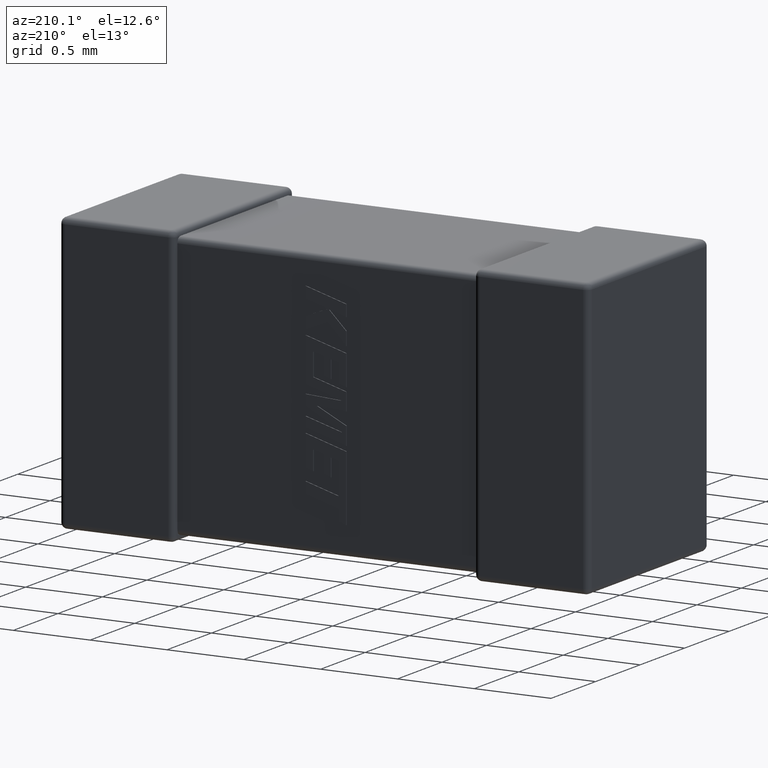
[diagram: clean part render]
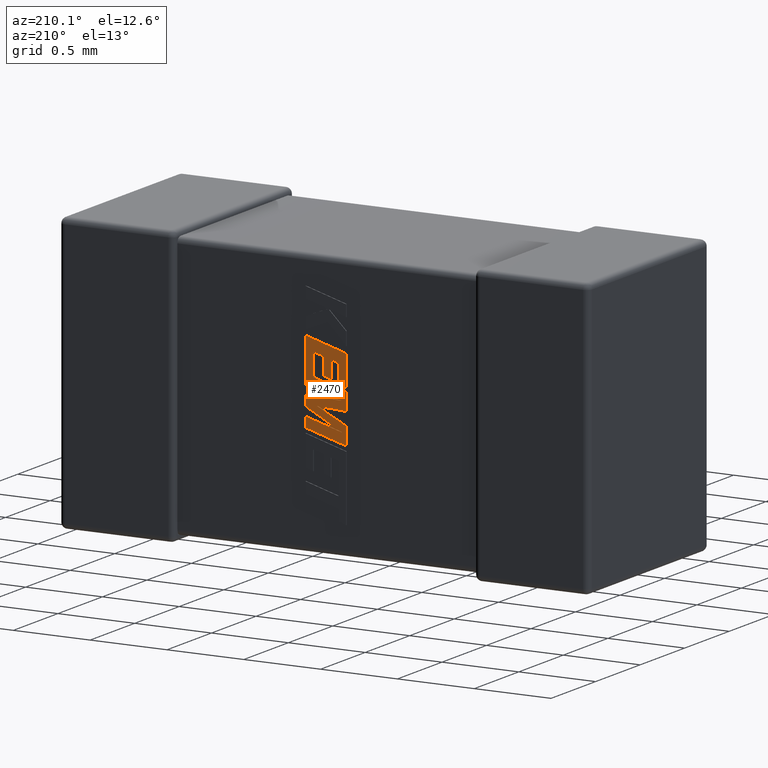
[diagram: same view with one face highlighted and labeled with its STEP entity id]
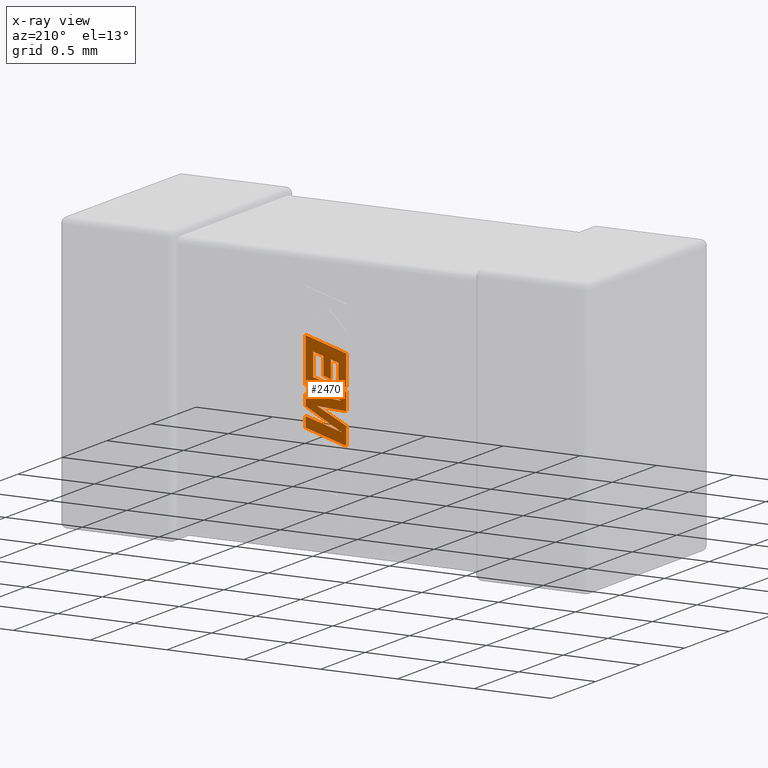
[diagram: x-ray of the same camera — body ghosted, the highlighted face saturated]
A machine part, auxiliary view. The second image highlights one B-rep face of the part: STEP entity #2470.
The next image is the same camera in x-ray: the body ghosted, the highlighted face saturated — about 0% of this face is hidden behind the body in this view.
In plain terms, the highlighted planar face has unit normal (0, -1, 0).
Its self-contained STEP definition (entity closure, byte-faithful):
#29 = DIRECTION ( 'NONE',  ( 0.000000000000000000, 0.000000000000000000, -1.000000000000000000 ) ) ;
#31 = ORIENTED_EDGE ( 'NONE', *, *, #3300, .T. ) ;
#50 = EDGE_CURVE ( 'NONE', #208, #1244, #1411, .T. ) ;
#55 = LINE ( 'NONE', #2088, #2664 ) ;
#106 = ORIENTED_EDGE ( 'NONE', *, *, #3181, .T. ) ;
#116 = CARTESIAN_POINT ( 'NONE',  ( 1.863000000000005096, 1.317560000000000064, -0.5091391542831160688 ) ) ;
#135 = LINE ( 'NONE', #3078, #1905 ) ;
#146 = ORIENTED_EDGE ( 'NONE', *, *, #1164, .T. ) ;
#166 = DIRECTION ( 'NONE',  ( 0.9611542233438712390, 0.000000000000000000, 0.2760118818968482213 ) ) ;
#179 = CARTESIAN_POINT ( 'NONE',  ( 1.863000000000005096, 1.317560000000000064, -0.7942160640461678467 ) ) ;
#188 = VERTEX_POINT ( 'NONE', #3446 ) ;
#208 = VERTEX_POINT ( 'NONE', #2336 ) ;
#210 = VERTEX_POINT ( 'NONE', #3510 ) ;
#231 = VERTEX_POINT ( 'NONE', #3171 ) ;
#266 = DIRECTION ( 'NONE',  ( 0.000000000000000000, 0.000000000000000000, -1.000000000000000000 ) ) ;
#281 = LINE ( 'NONE', #4614, #4200 ) ;
#289 = EDGE_CURVE ( 'NONE', #1088, #1593, #4321, .T. ) ;
#307 = CARTESIAN_POINT ( 'NONE',  ( 1.697968431657682853, 1.317560000000000064, -0.7451649767832891902 ) ) ;
#308 = LINE ( 'NONE', #4550, #3077 ) ;
#329 = CARTESIAN_POINT ( 'NONE',  ( 1.598380152701791790, 1.317560000000000064, -1.119510311478468134 ) ) ;
#334 = ORIENTED_EDGE ( 'NONE', *, *, #1172, .T. ) ;
#343 = CARTESIAN_POINT ( 'NONE',  ( 1.787427971559525597, 1.317560000000000064, -0.9096883145256312586 ) ) ;
#351 = CARTESIAN_POINT ( 'NONE',  ( 1.746887564039056873, 1.317560000000000064, -0.6176303792195445563 ) ) ;
#405 = LINE ( 'NONE', #1420, #1913 ) ;
#412 = CARTESIAN_POINT ( 'NONE',  ( 1.627415905431753851, 1.317560000000000064, -0.8618591413881407926 ) ) ;
#428 = LINE ( 'NONE', #4469, #1031 ) ;
#442 = CARTESIAN_POINT ( 'NONE',  ( 1.626281413472586257, 1.317560000000000064, -1.044163953269784839 ) ) ;
#485 = VECTOR ( 'NONE', #2042, 1000.000000000000227 ) ;
#491 = CARTESIAN_POINT ( 'NONE',  ( 1.697968431657682853, 1.317560000000000064, -0.6315870441368872656 ) ) ;
#531 = EDGE_CURVE ( 'NONE', #1028, #4233, #4622, .T. ) ;
#662 = CARTESIAN_POINT ( 'NONE',  ( 1.863000000000005096, 1.317560000000000064, -0.5091391542831160688 ) ) ;
#674 = EDGE_CURVE ( 'NONE', #210, #188, #1900, .T. ) ;
#705 = ORIENTED_EDGE ( 'NONE', *, *, #2952, .T. ) ;
#738 = EDGE_CURVE ( 'NONE', #2621, #231, #2632, .T. ) ;
#739 = LINE ( 'NONE', #307, #1307 ) ;
#753 = CARTESIAN_POINT ( 'NONE',  ( 1.648749181899789695, 1.317560000000000064, -0.6459089993731549351 ) ) ;
#789 = EDGE_CURVE ( 'NONE', #4233, #1870, #281, .T. ) ;
#810 = VECTOR ( 'NONE', #970, 1000.000000000000227 ) ;
#836 = VERTEX_POINT ( 'NONE', #753 ) ;
#838 = CARTESIAN_POINT ( 'NONE',  ( 1.598380152701791790, 1.317560000000000064, -0.8071726061217919801 ) ) ;
#848 = VECTOR ( 'NONE', #4353, 1000.000000000000000 ) ;
#873 = EDGE_CURVE ( 'NONE', #3075, #1391, #1917, .T. ) ;
#882 = ORIENTED_EDGE ( 'NONE', *, *, #674, .T. ) ;
#892 = EDGE_CURVE ( 'NONE', #3566, #836, #2992, .T. ) ;
#894 = CARTESIAN_POINT ( 'NONE',  ( 1.746887564039056873, 1.317560000000000064, -0.6176303792195445563 ) ) ;
#897 = DIRECTION ( 'NONE',  ( 0.000000000000000000, 0.000000000000000000, 1.000000000000000000 ) ) ;
#902 = DIRECTION ( 'NONE',  ( -0.9619530280415479195, 0.000000000000000000, -0.2732148821746301914 ) ) ;
#931 = EDGE_CURVE ( 'NONE', #1588, #1028, #2721, .T. ) ;
#932 = CARTESIAN_POINT ( 'NONE',  ( 1.598380152701791790, 1.317560000000000064, -0.8071726061217919801 ) ) ;
#944 = ORIENTED_EDGE ( 'NONE', *, *, #931, .T. ) ;
#952 = ORIENTED_EDGE ( 'NONE', *, *, #1837, .T. ) ;
#970 = DIRECTION ( 'NONE',  ( -0.9615454294334448981, 0.000000000000000000, -0.2746459304917005517 ) ) ;
#972 = ORIENTED_EDGE ( 'NONE', *, *, #2223, .T. ) ;
#1028 = VERTEX_POINT ( 'NONE', #3997 ) ;
#1031 = VECTOR ( 'NONE', #2571, 1000.000000000000000 ) ;
#1040 = DIRECTION ( 'NONE',  ( 0.9610853065513847993, 0.000000000000000000, 0.2762517575166369421 ) ) ;
#1088 = VERTEX_POINT ( 'NONE', #1777 ) ;
#1164 = EDGE_CURVE ( 'NONE', #3653, #2621, #2948, .T. ) ;
#1172 = EDGE_CURVE ( 'NONE', #1870, #3653, #2469, .T. ) ;
#1218 = EDGE_LOOP ( 'NONE', ( #3377, #3313, #334, #146, #1318, #2092, #2206, #3915, #705, #952, #2485, #4375, #882, #31, #3854, #2496, #1973, #972, #4419, #106, #1245, #3128, #944 ) ) ;
#1230 = PLANE ( 'NONE',  #3436 ) ;
#1244 = VERTEX_POINT ( 'NONE', #894 ) ;
#1245 = ORIENTED_EDGE ( 'NONE', *, *, #4393, .T. ) ;
#1247 = VECTOR ( 'NONE', #4252, 1000.000000000000114 ) ;
#1259 = VERTEX_POINT ( 'NONE', #442 ) ;
#1307 = VECTOR ( 'NONE', #2166, 1000.000000000000000 ) ;
#1318 = ORIENTED_EDGE ( 'NONE', *, *, #738, .T. ) ;
#1391 = VERTEX_POINT ( 'NONE', #179 ) ;
#1396 = CARTESIAN_POINT ( 'NONE',  ( 1.787427971559525597, 1.317560000000000064, -0.9096883145256312586 ) ) ;
#1411 = LINE ( 'NONE', #1432, #848 ) ;
#1420 = CARTESIAN_POINT ( 'NONE',  ( 1.648749181899789695, 1.317560000000000064, -0.6459089993731549351 ) ) ;
#1432 = CARTESIAN_POINT ( 'NONE',  ( 1.812655913532543295, 1.317560000000000064, -0.5988911467783583076 ) ) ;
#1477 = CARTESIAN_POINT ( 'NONE',  ( 1.863000000000005096, 1.317560000000000064, -0.8486539768188343658 ) ) ;
#1493 = DIRECTION ( 'NONE',  ( 0.000000000000000000, 0.000000000000000000, -1.000000000000000000 ) ) ;
#1588 = VERTEX_POINT ( 'NONE', #4039 ) ;
#1593 = VERTEX_POINT ( 'NONE', #3254 ) ;
#1732 = EDGE_CURVE ( 'NONE', #1391, #2456, #3528, .T. ) ;
#1777 = CARTESIAN_POINT ( 'NONE',  ( 1.863000000000005096, 1.317560000000000064, -0.8486539768188343658 ) ) ;
#1820 = VECTOR ( 'NONE', #3374, 1000.000000000000114 ) ;
#1837 = EDGE_CURVE ( 'NONE', #2690, #3566, #739, .T. ) ;
#1870 = VERTEX_POINT ( 'NONE', #1396 ) ;
#1900 = LINE ( 'NONE', #4453, #4296 ) ;
#1905 = VECTOR ( 'NONE', #1933, 1000.000000000000114 ) ;
#1913 = VECTOR ( 'NONE', #1493, 1000.000000000000000 ) ;
#1917 = LINE ( 'NONE', #116, #3416 ) ;
#1933 = DIRECTION ( 'NONE',  ( 0.9984327301130250243, 0.000000000000000000, 0.05596501978067341954 ) ) ;
#1952 = DIRECTION ( 'NONE',  ( 0.000000000000000000, 0.000000000000000000, -1.000000000000000000 ) ) ;
#1973 = ORIENTED_EDGE ( 'NONE', *, *, #1732, .T. ) ;
#1998 = CARTESIAN_POINT ( 'NONE',  ( 1.697968431657682853, 1.317560000000000064, -0.6315870441368872656 ) ) ;
#2006 = CARTESIAN_POINT ( 'NONE',  ( 1.598380152701791790, 1.317560000000000064, -0.7807783690678609112 ) ) ;
#2040 = VECTOR ( 'NONE', #4677, 1000.000000000000000 ) ;
#2042 = DIRECTION ( 'NONE',  ( -0.9611638845408969622, 0.000000000000000000, -0.2759782365590690012 ) ) ;
#2088 = CARTESIAN_POINT ( 'NONE',  ( 1.812655913532543295, 1.317560000000000064, -0.7455817617719676660 ) ) ;
#2092 = ORIENTED_EDGE ( 'NONE', *, *, #4632, .T. ) ;
#2161 = VECTOR ( 'NONE', #3476, 1000.000000000000000 ) ;
#2166 = DIRECTION ( 'NONE',  ( 0.000000000000000000, 0.000000000000000000, 1.000000000000000000 ) ) ;
#2206 = ORIENTED_EDGE ( 'NONE', *, *, #50, .T. ) ;
#2223 = EDGE_CURVE ( 'NONE', #2456, #1088, #135, .T. ) ;
#2246 = CARTESIAN_POINT ( 'NONE',  ( 0.08716339829042507592, 1.317560000000000064, 0.004072901265455560610 ) ) ;
#2336 = CARTESIAN_POINT ( 'NONE',  ( 1.812655913532543295, 1.317560000000000064, -0.5988911467783583076 ) ) ;
#2371 = VECTOR ( 'NONE', #29, 1000.000000000000000 ) ;
#2447 = DIRECTION ( 'NONE',  ( 0.8958676361826827250, 0.000000000000000000, 0.4443210308329466618 ) ) ;
#2456 = VERTEX_POINT ( 'NONE', #412 ) ;
#2459 = VECTOR ( 'NONE', #166, 1000.000000000000114 ) ;
#2469 = LINE ( 'NONE', #343, #2667 ) ;
#2470 = ADVANCED_FACE ( 'NONE', ( #3071 ), #1230, .F. ) ;
#2485 = ORIENTED_EDGE ( 'NONE', *, *, #892, .T. ) ;
#2494 = LINE ( 'NONE', #351, #2371 ) ;
#2496 = ORIENTED_EDGE ( 'NONE', *, *, #873, .T. ) ;
#2571 = DIRECTION ( 'NONE',  ( -0.8843386665637650301, 0.000000000000000000, -0.4668459304955137057 ) ) ;
#2614 = VERTEX_POINT ( 'NONE', #3884 ) ;
#2621 = VERTEX_POINT ( 'NONE', #932 ) ;
#2632 = LINE ( 'NONE', #838, #2727 ) ;
#2664 = VECTOR ( 'NONE', #3541, 1000.000000000000000 ) ;
#2665 = EDGE_CURVE ( 'NONE', #3361, #1588, #308, .T. ) ;
#2667 = VECTOR ( 'NONE', #3260, 999.9999999999998863 ) ;
#2690 = VERTEX_POINT ( 'NONE', #3477 ) ;
#2721 = LINE ( 'NONE', #3124, #3795 ) ;
#2727 = VECTOR ( 'NONE', #1040, 1000.000000000000114 ) ;
#2738 = EDGE_CURVE ( 'NONE', #836, #210, #405, .T. ) ;
#2761 = VERTEX_POINT ( 'NONE', #3046 ) ;
#2798 = VECTOR ( 'NONE', #3967, 1000.000000000000000 ) ;
#2881 = CARTESIAN_POINT ( 'NONE',  ( 1.598380152701791790, 1.317560000000000064, -1.003449846206255325 ) ) ;
#2948 = LINE ( 'NONE', #4377, #2040 ) ;
#2952 = EDGE_CURVE ( 'NONE', #2761, #2690, #3522, .T. ) ;
#2992 = LINE ( 'NONE', #491, #1820 ) ;
#3009 = DIRECTION ( 'NONE',  ( 0.000000000000000000, 0.000000000000000000, -1.000000000000000000 ) ) ;
#3046 = CARTESIAN_POINT ( 'NONE',  ( 1.746887564039056873, 1.317560000000000064, -0.7311922197814223479 ) ) ;
#3057 = EDGE_CURVE ( 'NONE', #1244, #2761, #2494, .T. ) ;
#3071 = FACE_OUTER_BOUND ( 'NONE', #1218, .T. ) ;
#3075 = VERTEX_POINT ( 'NONE', #662 ) ;
#3077 = VECTOR ( 'NONE', #266, 1000.000000000000000 ) ;
#3078 = CARTESIAN_POINT ( 'NONE',  ( 1.627415905431753851, 1.317560000000000064, -0.8618591413881407926 ) ) ;
#3112 = CARTESIAN_POINT ( 'NONE',  ( 1.746887564039056873, 1.317560000000000064, -0.7311922197814223479 ) ) ;
#3124 = CARTESIAN_POINT ( 'NONE',  ( 1.863000000000005096, 1.317560000000000064, -1.043430154215027272 ) ) ;
#3128 = ORIENTED_EDGE ( 'NONE', *, *, #2665, .T. ) ;
#3171 = CARTESIAN_POINT ( 'NONE',  ( 1.812655913532543295, 1.317560000000000064, -0.7455817617719676660 ) ) ;
#3181 = EDGE_CURVE ( 'NONE', #1593, #1259, #428, .T. ) ;
#3254 = CARTESIAN_POINT ( 'NONE',  ( 1.863000000000005096, 1.317560000000000064, -0.9191992616065969290 ) ) ;
#3260 = DIRECTION ( 'NONE',  ( -0.9985542843760949472, 0.000000000000000000, -0.05375259206908061804 ) ) ;
#3300 = EDGE_CURVE ( 'NONE', #188, #2614, #4140, .T. ) ;
#3313 = ORIENTED_EDGE ( 'NONE', *, *, #789, .T. ) ;
#3361 = VERTEX_POINT ( 'NONE', #3702 ) ;
#3374 = DIRECTION ( 'NONE',  ( -0.9601763114327565019, 0.000000000000000000, -0.2793947940878392933 ) ) ;
#3377 = ORIENTED_EDGE ( 'NONE', *, *, #531, .T. ) ;
#3416 = VECTOR ( 'NONE', #1952, 1000.000000000000000 ) ;
#3436 = AXIS2_PLACEMENT_3D ( 'NONE', #2246, #4504, #3009 ) ;
#3446 = CARTESIAN_POINT ( 'NONE',  ( 1.598380152701791790, 1.317560000000000064, -0.7807783690678609112 ) ) ;
#3476 = DIRECTION ( 'NONE',  ( 0.000000000000000000, 0.000000000000000000, 1.000000000000000000 ) ) ;
#3477 = CARTESIAN_POINT ( 'NONE',  ( 1.697968431657682853, 1.317560000000000064, -0.7451649767832891902 ) ) ;
#3510 = CARTESIAN_POINT ( 'NONE',  ( 1.648749181899789695, 1.317560000000000064, -0.7664725059161028309 ) ) ;
#3517 = CARTESIAN_POINT ( 'NONE',  ( 1.598380152701791790, 1.317560000000000064, -0.5852860939098785131 ) ) ;
#3522 = LINE ( 'NONE', #3112, #810 ) ;
#3528 = LINE ( 'NONE', #4218, #485 ) ;
#3529 = CARTESIAN_POINT ( 'NONE',  ( 1.598380152701791790, 1.317560000000000064, -0.9198648371720272721 ) ) ;
#3541 = DIRECTION ( 'NONE',  ( 0.000000000000000000, 0.000000000000000000, 1.000000000000000000 ) ) ;
#3566 = VERTEX_POINT ( 'NONE', #1998 ) ;
#3653 = VERTEX_POINT ( 'NONE', #3529 ) ;
#3702 = CARTESIAN_POINT ( 'NONE',  ( 1.863000000000005096, 1.317560000000000064, -0.9761861605695812960 ) ) ;
#3714 = CARTESIAN_POINT ( 'NONE',  ( 1.626281413472586257, 1.317560000000000064, -1.044163953269784839 ) ) ;
#3795 = VECTOR ( 'NONE', #4558, 1000.000000000000227 ) ;
#3854 = ORIENTED_EDGE ( 'NONE', *, *, #4156, .T. ) ;
#3884 = CARTESIAN_POINT ( 'NONE',  ( 1.598380152701791790, 1.317560000000000064, -0.5852860939098785131 ) ) ;
#3915 = ORIENTED_EDGE ( 'NONE', *, *, #3057, .T. ) ;
#3967 = DIRECTION ( 'NONE',  ( 0.000000000000000000, 0.000000000000000000, -1.000000000000000000 ) ) ;
#3982 = VECTOR ( 'NONE', #897, 1000.000000000000000 ) ;
#3997 = CARTESIAN_POINT ( 'NONE',  ( 1.598380152701791790, 1.317560000000000064, -1.119510311478468134 ) ) ;
#4039 = CARTESIAN_POINT ( 'NONE',  ( 1.863000000000005096, 1.317560000000000064, -1.043430154215027272 ) ) ;
#4140 = LINE ( 'NONE', #2006, #3982 ) ;
#4156 = EDGE_CURVE ( 'NONE', #2614, #3075, #4592, .T. ) ;
#4200 = VECTOR ( 'NONE', #2447, 1000.000000000000114 ) ;
#4218 = CARTESIAN_POINT ( 'NONE',  ( 1.863000000000005096, 1.317560000000000064, -0.7942160640461678467 ) ) ;
#4233 = VERTEX_POINT ( 'NONE', #2881 ) ;
#4252 = DIRECTION ( 'NONE',  ( 0.9610029908221285888, 0.000000000000000000, 0.2765379750249931656 ) ) ;
#4296 = VECTOR ( 'NONE', #902, 999.9999999999998863 ) ;
#4321 = LINE ( 'NONE', #1477, #2798 ) ;
#4353 = DIRECTION ( 'NONE',  ( -0.9617234872620624708, 0.000000000000000000, -0.2740217765953968376 ) ) ;
#4375 = ORIENTED_EDGE ( 'NONE', *, *, #2738, .T. ) ;
#4377 = CARTESIAN_POINT ( 'NONE',  ( 1.598380152701791790, 1.317560000000000064, -0.9198648371720272721 ) ) ;
#4393 = EDGE_CURVE ( 'NONE', #1259, #3361, #4454, .T. ) ;
#4419 = ORIENTED_EDGE ( 'NONE', *, *, #289, .T. ) ;
#4453 = CARTESIAN_POINT ( 'NONE',  ( 1.648749181899789695, 1.317560000000000064, -0.7664725059161028309 ) ) ;
#4454 = LINE ( 'NONE', #3714, #2459 ) ;
#4469 = CARTESIAN_POINT ( 'NONE',  ( 1.863000000000005096, 1.317560000000000064, -0.9191992616065969290 ) ) ;
#4504 = DIRECTION ( 'NONE',  ( 0.000000000000000000, -1.000000000000000000, 0.000000000000000000 ) ) ;
#4550 = CARTESIAN_POINT ( 'NONE',  ( 1.863000000000005096, 1.317560000000000064, -0.9761861605695812960 ) ) ;
#4558 = DIRECTION ( 'NONE',  ( -0.9610674221107078363, 0.000000000000000000, -0.2763139702539094134 ) ) ;
#4592 = LINE ( 'NONE', #3517, #1247 ) ;
#4614 = CARTESIAN_POINT ( 'NONE',  ( 1.598380152701791790, 1.317560000000000064, -1.003449846206255325 ) ) ;
#4622 = LINE ( 'NONE', #329, #2161 ) ;
#4632 = EDGE_CURVE ( 'NONE', #231, #208, #55, .T. ) ;
#4677 = DIRECTION ( 'NONE',  ( 0.000000000000000000, 0.000000000000000000, 1.000000000000000000 ) ) ;